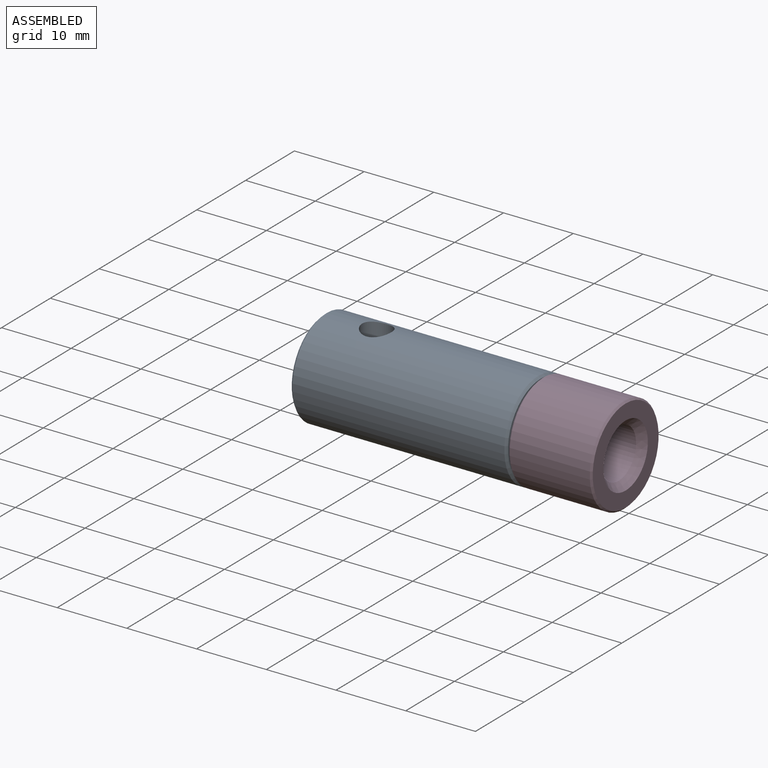
[diagram: assembled view]
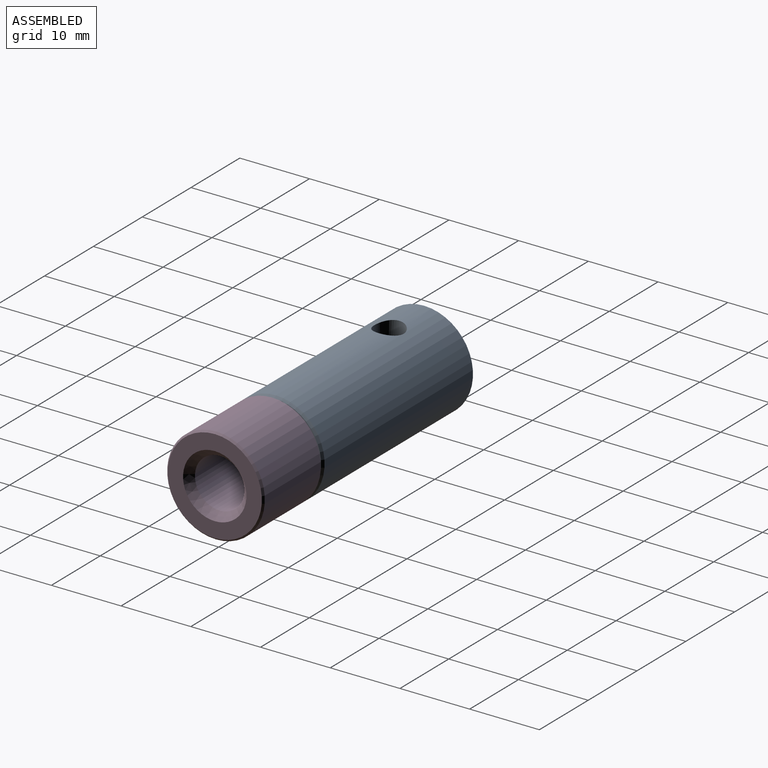
[diagram: assembled view, second angle]
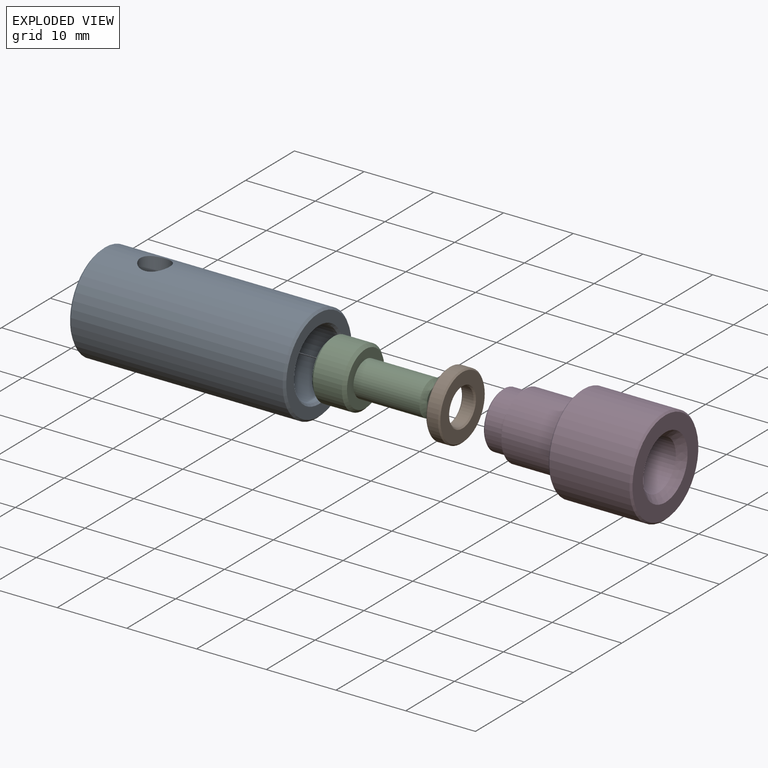
[diagram: exploded view]
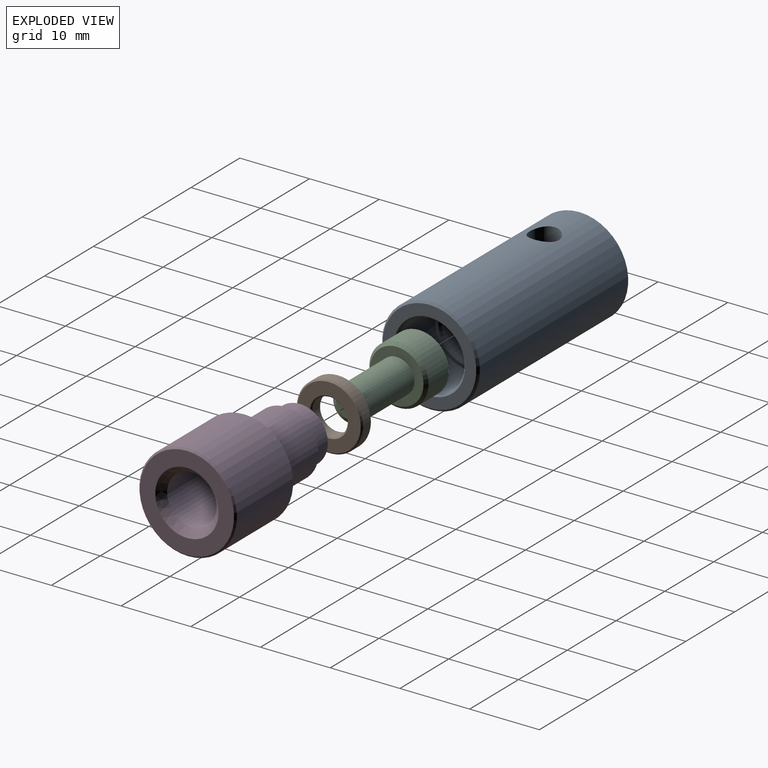
[diagram: exploded view, second angle]
ASSEMBLY  parts=4 mates=3
PART A: 15 faces, bbox 31x14x14 mm
  f0: cylinder r=4.05mm len=8.1mm, axis (1,0,0), area 61.1mm2, adj f11,f12
  f1: cylinder r=7mm len=30.4mm, axis (-1,0,0), area 1323mm2, adj f8,f9,f13
  f2: plane 13.4x13.4mm, normal (1,0,0), area 59.3mm2, adj f13,f14
  f3: plane 13.4x13.4mm, normal (-1,0,0), area 59.3mm2, adj f9,f10
  f4: plane 9.6x9.6mm, normal (-1,0,0), area 12.9mm2, adj f5,f11
  f5: cylinder r=4.8mm len=19.7mm, axis (-1,0,0), area 579.9mm2, adj f4,f8,f10
  f6: plane 9.6x9.6mm, normal (1,0,0), area 12.9mm2, adj f7,f12
  f7: cylinder r=4.8mm len=9.6mm, axis (1,0,0), area 232.2mm2, adj f6,f14
  f8: cylinder r=2.1mm len=4.2mm, axis (0,0,1), area 30.1mm2, adj f1,f5
  f9: cone r=7mm half-angle=45deg, axis (1,0,0), area 18.3mm2, adj f1,f3
  f10: cone r=4.8mm half-angle=45deg, axis (-1,0,0), area 13.2mm2, adj f3,f5
  f11: cone r=4.35mm half-angle=45deg, axis (-1,0,0), area 11.2mm2, adj f0,f4
  f12: cone r=4.35mm half-angle=45deg, axis (1,0,0), area 11.2mm2, adj f0,f6
  f13: cone r=6.7mm half-angle=45deg, axis (-1,0,0), area 18.3mm2, adj f1,f2
  f14: cone r=4.8mm half-angle=45deg, axis (1,0,0), area 13.2mm2, adj f2,f7
PART B: 8 faces, bbox 9.5x9.5x2 mm
  f0: cylinder r=4.75mm len=9.5mm, axis (0,0,-1), area 47.8mm2, adj f6,f7
  f1: plane 9.1x9.1mm, normal (0,0,1), area 41.3mm2, adj f5,f7
  f2: plane 9.1x9.1mm, normal (0,0,-1), area 41.3mm2, adj f4,f6
  f3: cylinder r=2.55mm len=5.1mm, axis (0,0,1), area 25.6mm2, adj f4,f5
  f4: cone r=2.75mm half-angle=45deg, axis (0,0,-1), area 4.7mm2, adj f2,f3
  f5: cone r=2.55mm half-angle=45deg, axis (0,0,1), area 4.7mm2, adj f1,f3
  f6: cone r=4.75mm half-angle=45deg, axis (0,0,1), area 8.3mm2, adj f0,f2
  f7: cone r=4.55mm half-angle=45deg, axis (0,0,-1), area 8.3mm2, adj f0,f1
PART C: 33 faces, bbox 15.2x8.7x8.7 mm
  f0: cone r=0mm half-angle=60deg, axis (-1,0,0), area 14.5mm2, adj f1,f2,f3,f4,f5,f6
  f1: plane 1.73x1mm, normal (-1,0,0), area 0.2mm2, adj f0,f7,f8
  f2: plane 1.73x1mm, normal (-1,0,0), area 0.2mm2, adj f0,f8,f9
  f3: plane 2x0.58mm, normal (-1,0,0), area 0.2mm2, adj f0,f9,f10
  f4: plane 1.73x1mm, normal (-1,0,0), area 0.2mm2, adj f0,f10,f11
  f5: plane 1.73x1mm, normal (-1,0,0), area 0.2mm2, adj f0,f11,f12
  f6: plane 2x0.58mm, normal (-1,0,0), area 0.2mm2, adj f0,f7,f12
  f7: plane 2.73x2.23mm, normal (0,0.87,0.5), area 5.3mm2, adj f1,f6,f8,f12,f13,f14
  f8: plane 2.73x2.53mm, normal (0,0,1), area 5.3mm2, adj f1,f2,f7,f9,f15
  f9: plane 2.73x2.23mm, normal (0,-0.87,0.5), area 5.3mm2, adj f2,f3,f8,f10,f16,f17
  f10: plane 2.73x2.23mm, normal (0,-0.87,-0.5), area 5.3mm2, adj f3,f4,f9,f11,f18,f19
  f11: plane 2.73x2.53mm, normal (0,0,-1), area 5.3mm2, adj f4,f5,f10,f12,f20
  f12: plane 2.73x2.23mm, normal (0,0.87,-0.5), area 5.3mm2, adj f5,f6,f7,f11,f21,f22
  f13: cone r=0mm half-angle=45deg, axis (-1,0,0), area 0.3mm2, adj f7,f14,f23
  f14: cone r=0mm half-angle=45deg, axis (-1,0,0), area 0.3mm2, adj f7,f13,f23
  f15: cone r=0mm half-angle=45deg, axis (-1,0,0), area 0.5mm2, adj f8,f23
  f16: cone r=0mm half-angle=45deg, axis (-1,0,0), area 0.3mm2, adj f9,f17,f23
  f17: cone r=0mm half-angle=45deg, axis (-1,0,0), area 0.3mm2, adj f9,f16,f23
  f18: cone r=0mm half-angle=45deg, axis (-1,0,0), area 0.3mm2, adj f10,f19,f23
  f19: cone r=0mm half-angle=45deg, axis (-1,0,0), area 0.3mm2, adj f10,f18,f23
  f20: cone r=0mm half-angle=45deg, axis (-1,0,0), area 0.5mm2, adj f11,f23
  f21: cone r=0mm half-angle=45deg, axis (-1,0,0), area 0.3mm2, adj f12,f22,f23
  f22: cone r=0mm half-angle=45deg, axis (-1,0,0), area 0.3mm2, adj f12,f21,f23
  f23: plane 7.65x7.65mm, normal (-1,0,0), area 29.2mm2, adj f13,f14,f15,f16,f17,f18,f19,f20
  f24: cone r=0mm half-angle=45deg, axis (1,0,0), area 7.6mm2, adj f23,f25,f26
  f25: cone r=0mm half-angle=45deg, axis (1,0,0), area 7.6mm2, adj f23,f24,f26
  f26: cylinder r=4.25mm len=8.5mm, axis (1,0,0), area 110.8mm2, adj f24,f25,f27,f28
  f27: cone r=0mm half-angle=45deg, axis (-1,0,0), area 7.6mm2, adj f26,f28,f29
  f28: cone r=0mm half-angle=45deg, axis (-1,0,0), area 7.6mm2, adj f26,f27,f29
  f29: plane 7.65x7.65mm, normal (1,0,0), area 26.3mm2, adj f27,f28,f31
  f30: plane 3.5x3.5mm, normal (1,0,0), area 9.6mm2, adj f32
  f31: cylinder r=2.5mm len=9.48mm, axis (1,0,0), area 148.8mm2, adj f29,f32
  f32: cone r=0mm half-angle=55deg, axis (-1,0,0), area 12.2mm2, adj f30,f31
PART D: 16 faces, bbox 14x23.4x14 mm
  f0: cylinder r=7mm len=14mm, axis (0,1,0), area 505.8mm2, adj f11,f12
  f1: plane 13.5x13.5mm, normal (0,-1,0), area 78.1mm2, adj f9,f12
  f2: plane 13.5x13.5mm, normal (0,1,0), area 72.3mm2, adj f3,f11
  f3: cylinder r=4.75mm len=9.5mm, axis (0,-1,0), area 244.7mm2, adj f2,f4
  f4: plane 9.5x9.5mm, normal (0,1,0), area 20.6mm2, adj f3,f5
  f5: cylinder r=4mm len=8mm, axis (0,-1,0), area 74.1mm2, adj f4,f10
  f6: plane 7.5x7.5mm, normal (0,1,0), area 17.8mm2, adj f10,f15
  f7: cylinder r=3.55mm len=9mm, axis (0,-1,0), area 200.7mm2, adj f8,f9
  f8: plane 7.1x7.1mm, normal (0,-1,0), area 39.6mm2, adj f7
  f9: cone r=3.55mm half-angle=45deg, axis (0,-1,0), area 36mm2, adj f1,f7
  f10: cone r=3.75mm half-angle=45deg, axis (0,-1,0), area 8.6mm2, adj f5,f6
  f11: cone r=7mm half-angle=45deg, axis (0,-1,0), area 15.3mm2, adj f0,f2
  f12: cone r=6.75mm half-angle=45deg, axis (0,1,0), area 15.3mm2, adj f0,f1
  f13: cylinder r=2.1mm len=10.2mm, axis (0,1,0), area 134.6mm2, adj f14,f15
  f14: plane 4.2x4.2mm, normal (0,1,0), area 13.9mm2, adj f13
  f15: cone r=2.1mm half-angle=45deg, axis (0,1,0), area 17.8mm2, adj f6,f13
PLACE A t=(-3.25,9.41,3.44)mm
PLACE B rot(axis=(0,-1,0),90deg) t=(16.55,9.41,3.44)mm
PLACE C t=(24.55,9.41,3.44)mm
PLACE D rot(axis=(0,0,1),90deg) t=(27.95,9.41,3.44)mm
MATE fastened C.f0 <-> B.f0  axis (1,0,0) through (14.55,9.41,3.44)mm
MATE fastened B.f3 <-> D.f13  axis (1,0,0) through (16.55,9.41,3.44)mm
MATE fastened D.f3 <-> A.f5  axis (-1,0,0) through (19.75,9.41,3.44)mm
